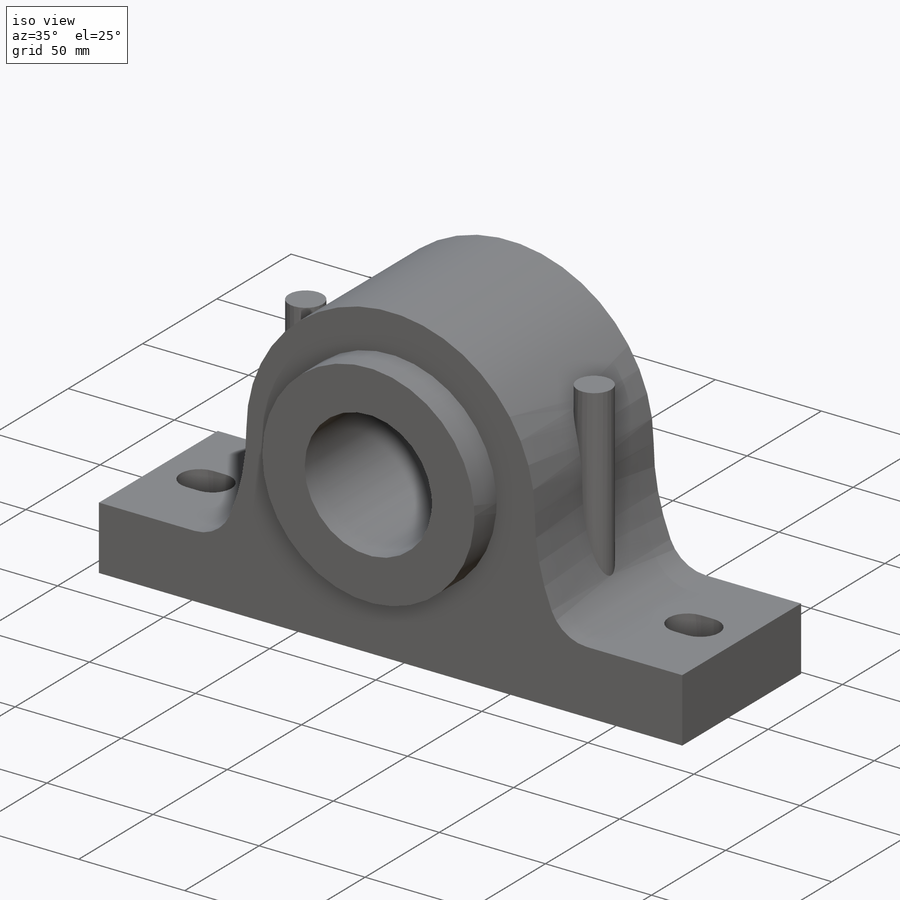
[diagram: iso view]
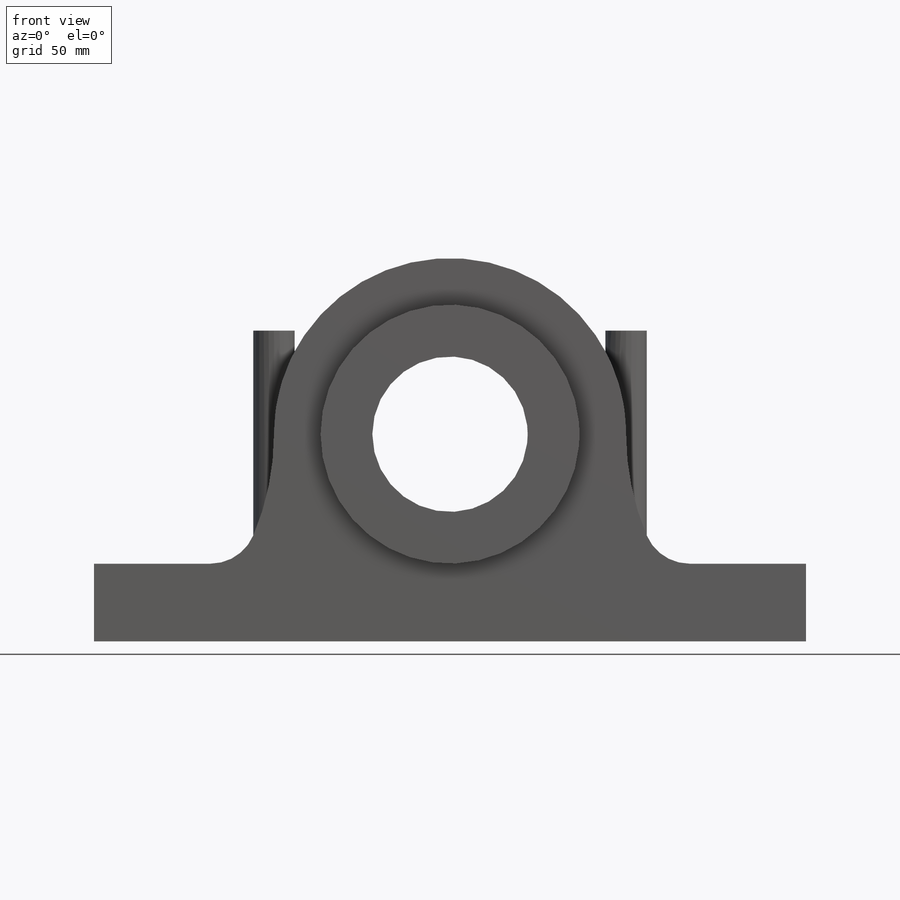
[diagram: front view]
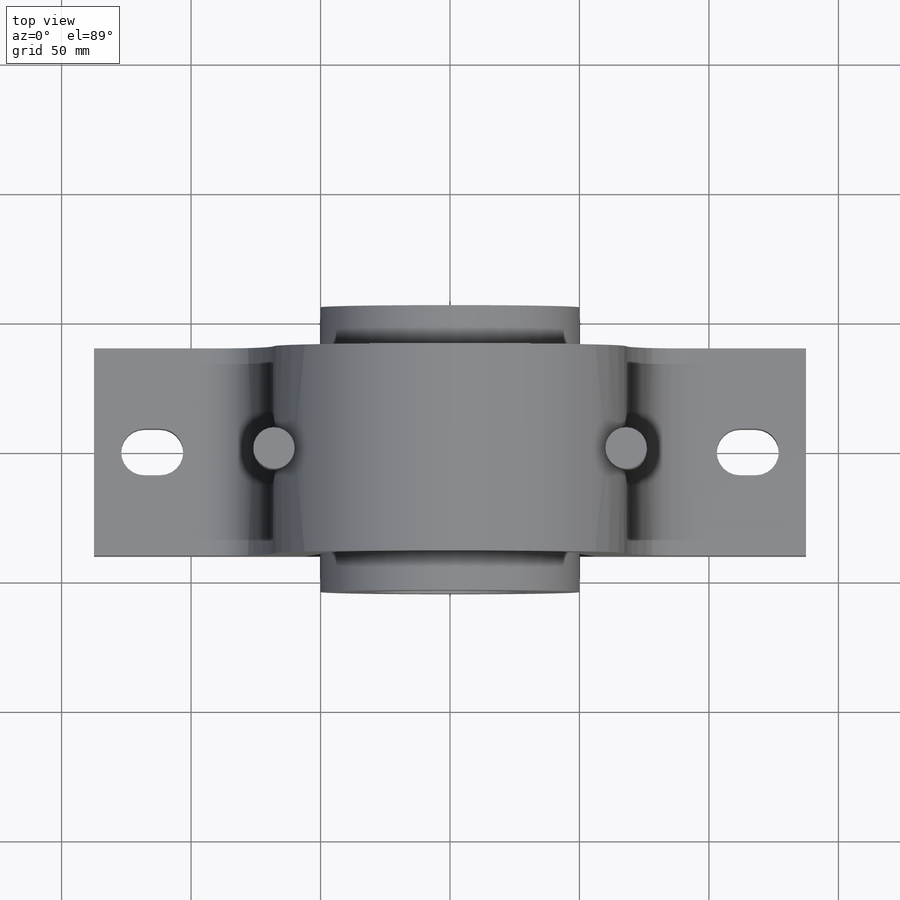
[diagram: top view]
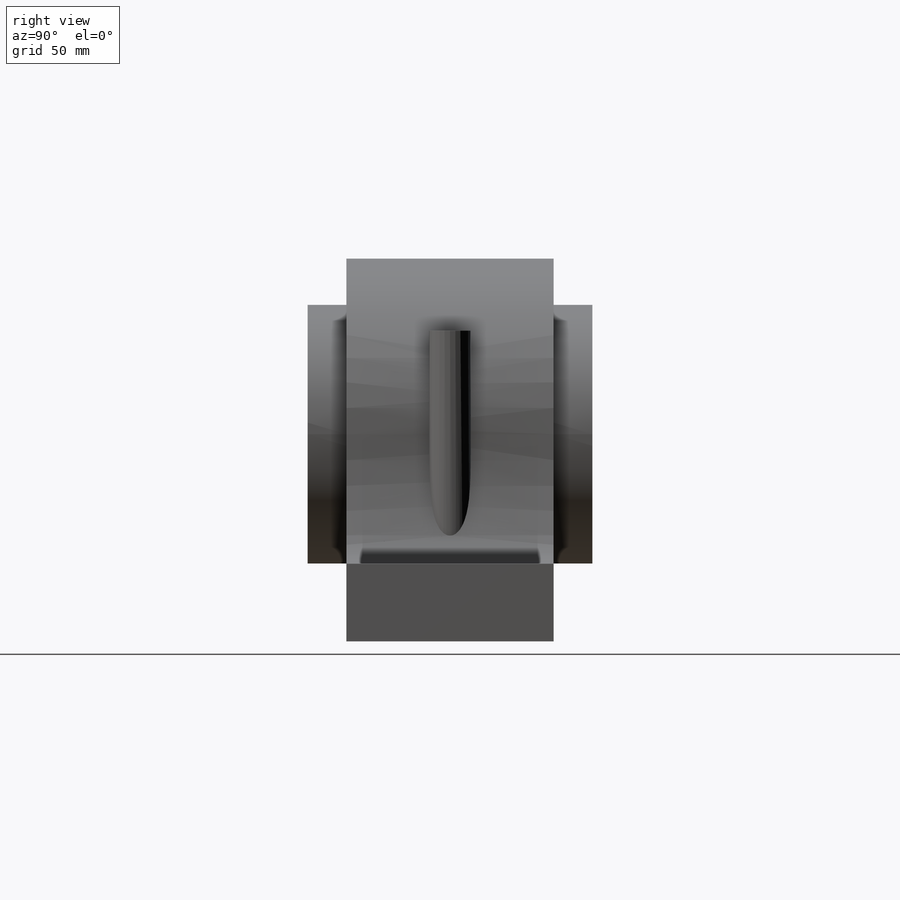
[diagram: right view]
SOLIDWORKS PART (.sldprt)
format: sldprt  version: not decoded by parser v0  size: 256,512 bytes
history: native  units: mm
features: sketch x4, extrude x3, material x1, cut_extrude x1 (+12 scaffold rows collapsed)
feature tree (21):
  scaffold x12  (default folders/planes/origin — collapsed)
  material  "Plain Carbon Steel"
  sketch  "Sketch1"  dims[D1=60.0mm D5=68.0mm D2=80.0mm D3=137.5mm D4=115.0mm D6=30.0mm D7=148.0mm]
  extrude  "Boss-Extrude1"  Depth=80mm
  sketch  "Sketch2"  dims[D1=60.0mm D2=100.0mm]
  extrude  "Boss-Extrude2"  Depth=110mm
  sketch  "Sketch3"  dims[c1.D2=9.0mm c1.D1=18.0mm c2.D2=115.0mm c2.D3=6.0mm]
  cut_extrude  "Cut-Extrude1"  Depth=110mm
  sketch  "Sketch5"  dims[D1=16.0mm D2=16.0mm]
  extrude  "Boss-Extrude3"  Depth=40mm
decode coverage: 8 of 8 modeling features carry decoded parameters
note: suppression state not decoded; provenance and decode notes live in map.json
